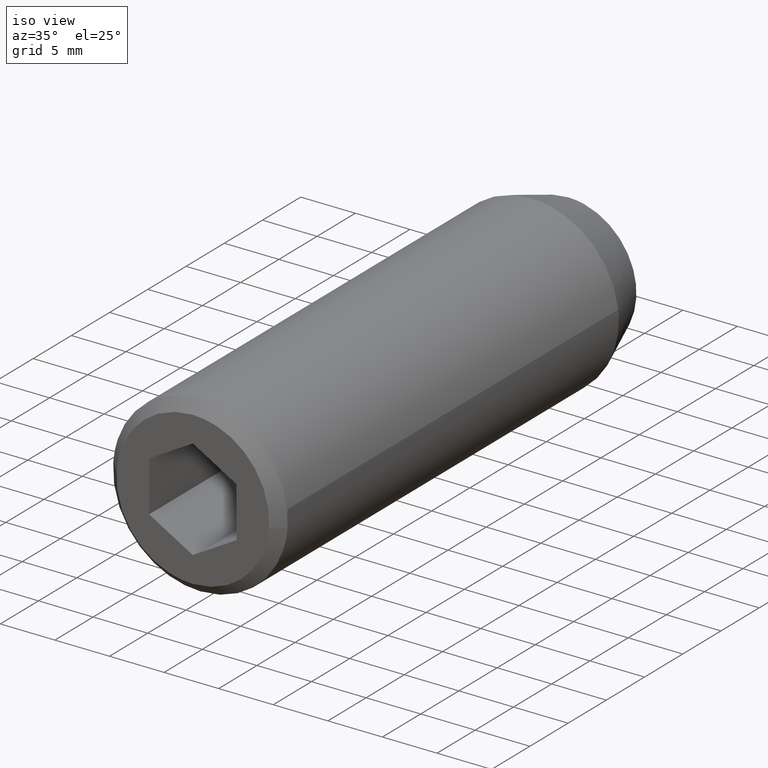
[diagram: clean part render]
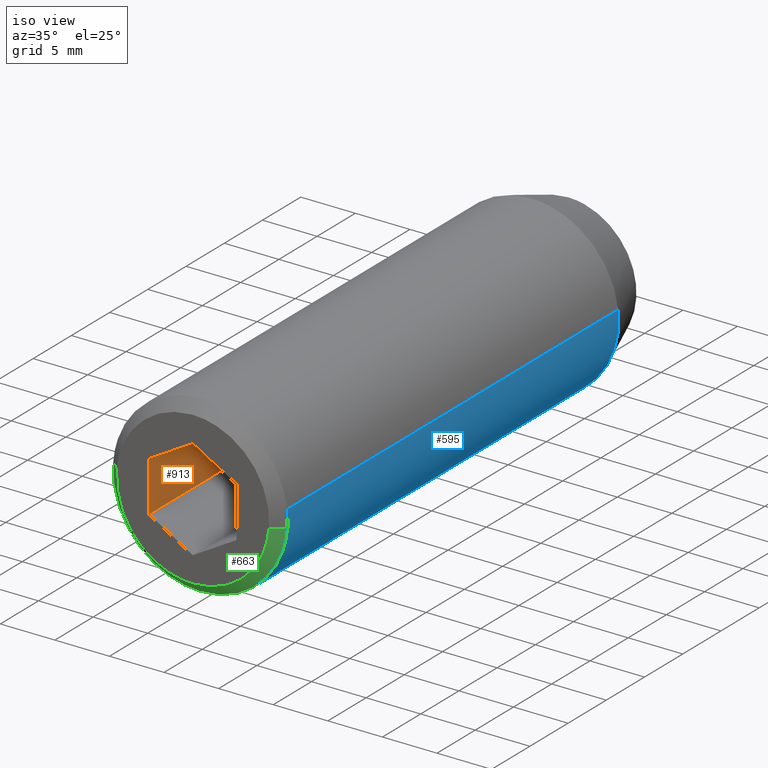
[diagram: same view with three faces highlighted in distinct colors, each labeled with its STEP entity id]
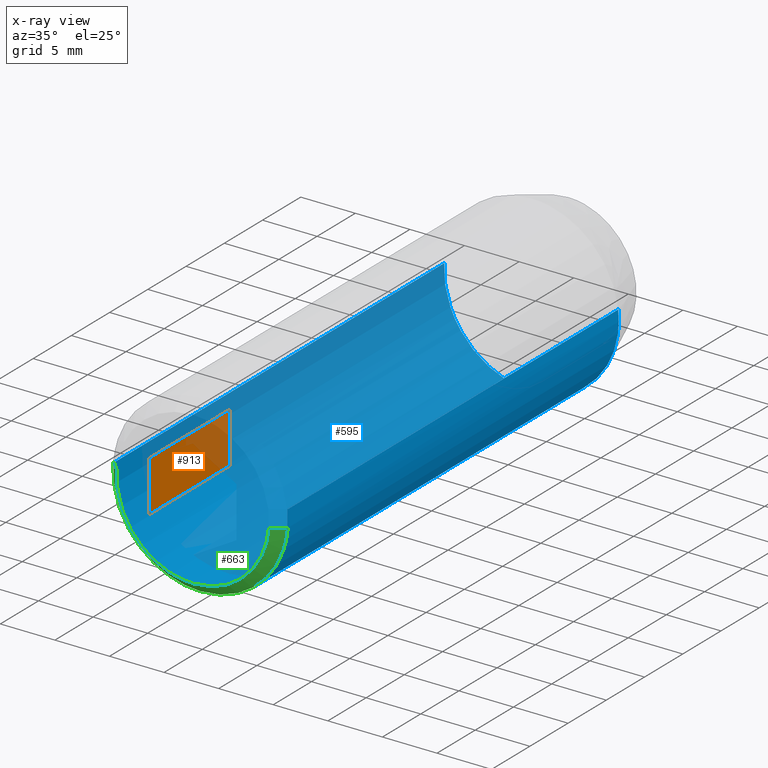
[diagram: x-ray of the same camera — body ghosted, the three highlighted faces saturated]
A machine part, iso view with three faces highlighted in distinct colors.
The next image is the same camera in x-ray (body ghosted, the three faces saturated) — at least one of them is partly hidden behind the body in this view.
Their STEP definitions:

[orange] entity #913 — the highlighted face is a freeform B-spline surface patch.
#737=CARTESIAN_POINT('',(-4.0,-38.600000000000001,2.309401000000000));
#738=VERTEX_POINT('',#737);
#739=CARTESIAN_POINT('',(-4.0,-38.600000000000001,-2.309401000000000));
#740=VERTEX_POINT('',#739);
#741=CARTESIAN_POINT('',(-4.0,-38.600000000000001,2.309401000000000));
#742=CARTESIAN_POINT('',(-4.0,-38.600000000000001,-2.309401000000000));
#743=QUASI_UNIFORM_CURVE('',1,(#741,#742),.UNSPECIFIED.,.F.,.U.);
#744=EDGE_CURVE('',#738,#740,#743,.T.);
#789=CARTESIAN_POINT('',(-4.0,-49.099999999999987,2.309401000000000));
#790=VERTEX_POINT('',#789);
#796=CARTESIAN_POINT('',(-4.0,-38.600000000000001,2.309401000000000));
#797=CARTESIAN_POINT('',(-4.0,-49.099999999999987,2.309401000000000));
#798=QUASI_UNIFORM_CURVE('',1,(#796,#797),.UNSPECIFIED.,.F.,.U.);
#799=EDGE_CURVE('',#738,#790,#798,.T.);
#881=CARTESIAN_POINT('',(-4.0,-49.099999999999987,-2.309401000000000));
#882=VERTEX_POINT('',#881);
#890=CARTESIAN_POINT('',(-4.0,-38.600000000000001,-2.309401000000000));
#891=CARTESIAN_POINT('',(-4.0,-49.099999999999987,-2.309401000000000));
#892=QUASI_UNIFORM_CURVE('',1,(#890,#891),.UNSPECIFIED.,.F.,.U.);
#893=EDGE_CURVE('',#740,#882,#892,.T.);
#898=CARTESIAN_POINT('',(-4.0,-49.624473477611922,-2.540110194305874));
#899=CARTESIAN_POINT('',(-4.0,-49.624473477611922,2.540110276896490));
#900=CARTESIAN_POINT('',(-4.0,-38.075523236682052,-2.540110194305874));
#901=CARTESIAN_POINT('',(-4.0,-38.075523236682052,2.540110276896490));
#902=B_SPLINE_SURFACE_WITH_KNOTS('',1,1,((#898,#900),(#899,#901)),.UNSPECIFIED.,.F.,.F.,.U.,(2,2),(2,2),(0.0,5.080220471202364),(0.0,11.548950240929861),.UNSPECIFIED.);
#903=CARTESIAN_POINT('',(-4.0,-49.099999999999987,2.309401000000000));
#904=CARTESIAN_POINT('',(-4.0,-49.099999999999987,-2.309401000000000));
#905=QUASI_UNIFORM_CURVE('',1,(#903,#904),.UNSPECIFIED.,.F.,.U.);
#906=EDGE_CURVE('',#790,#882,#905,.T.);
#907=ORIENTED_EDGE('',*,*,#906,.T.);
#908=ORIENTED_EDGE('',*,*,#893,.F.);
#909=ORIENTED_EDGE('',*,*,#744,.F.);
#910=ORIENTED_EDGE('',*,*,#799,.T.);
#911=EDGE_LOOP('',(#907,#908,#909,#910));
#912=FACE_OUTER_BOUND('',#911,.T.);
#913=ADVANCED_FACE('',(#912),#902,.F.);

[blue] entity #595 — the highlighted face is a freeform B-spline surface patch.
#309=CARTESIAN_POINT('',(-7.985078754315566,-4.808085991073178,0.488382263480437));
#310=VERTEX_POINT('',#309);
#331=CARTESIAN_POINT('',(7.947754924152036,-4.808086000000000,0.912793331193569));
#332=VERTEX_POINT('',#331);
#346=CARTESIAN_POINT('',(0.0,-4.808085999999999,-8.000000000000002));
#347=VERTEX_POINT('',#346);
#348=CARTESIAN_POINT('',(0.0,-4.808085999999999,-8.000000000000002));
#349=CARTESIAN_POINT('',(8.0,-4.808086000000000,-8.000000000000002));
#350=CARTESIAN_POINT('',(8.0,-4.808085999999999,-1.291960E-015));
#351=CARTESIAN_POINT('',(8.0,-4.808085999999999,0.457891827676239));
#352=CARTESIAN_POINT('',(7.947754924152037,-4.808086000000000,0.912793331193569));
#360=(BOUNDED_CURVE()B_SPLINE_CURVE(2,(#348,#349,#350,#351,#352),.UNSPECIFIED.,.F.,.U.)B_SPLINE_CURVE_WITH_KNOTS((3,2,3),(0.0,0.250000000000000,0.269767500636303),.UNSPECIFIED.)CURVE()GEOMETRIC_REPRESENTATION_ITEM()RATIONAL_B_SPLINE_CURVE((1.0,0.707106781186548,1.0,0.976840932442945,0.957344239947252))REPRESENTATION_ITEM(''));
#361=EDGE_CURVE('',#347,#332,#360,.T.);
#363=CARTESIAN_POINT('',(-6.487788583762318,-4.808086000000658,-4.680662270705629));
#364=VERTEX_POINT('',#363);
#365=CARTESIAN_POINT('',(-6.487788583762318,-4.808086000000659,-4.680662270705628));
#366=CARTESIAN_POINT('',(-4.093028231652281,-4.808085999999999,-8.000000000000002));
#367=CARTESIAN_POINT('',(0.0,-4.808085999999999,-8.000000000000002));
#375=(BOUNDED_CURVE()B_SPLINE_CURVE(2,(#365,#366,#367),.UNSPECIFIED.,.F.,.U.)B_SPLINE_CURVE_WITH_KNOTS((3,3),(0.850743050382243,1.0),.UNSPECIFIED.)CURVE()GEOMETRIC_REPRESENTATION_ITEM()RATIONAL_B_SPLINE_CURVE((0.859068214727234,0.825134606384711,1.0))REPRESENTATION_ITEM(''));
#376=EDGE_CURVE('',#364,#347,#375,.T.);
#416=CARTESIAN_POINT('',(-7.985078754315566,-4.808085991073178,0.488382263480437));
#417=CARTESIAN_POINT('',(-8.0,-4.808085999999999,0.244419071603541));
#418=CARTESIAN_POINT('',(-8.0,-4.808085999999999,-1.291960E-015));
#419=CARTESIAN_POINT('',(-8.0,-4.808085999999999,-2.584611029433695));
#420=CARTESIAN_POINT('',(-6.487788583762318,-4.808086000000658,-4.680662270705629));
#428=(BOUNDED_CURVE()B_SPLINE_CURVE(2,(#416,#417,#418,#419,#420),.UNSPECIFIED.,.F.,.U.)B_SPLINE_CURVE_WITH_KNOTS((3,2,3),(0.739333093030511,0.750000000000000,0.850743050382242),.UNSPECIFIED.)CURVE()GEOMETRIC_REPRESENTATION_ITEM()RATIONAL_B_SPLINE_CURVE((0.976072321978106,0.987502941131691,1.0,0.881972174801837,0.859068214727234))REPRESENTATION_ITEM(''));
#429=EDGE_CURVE('',#310,#364,#428,.T.);
#457=CARTESIAN_POINT('',(7.947753547482387,-48.099999999999987,0.912805317951816));
#458=VERTEX_POINT('',#457);
#474=CARTESIAN_POINT('',(7.947754924152036,-4.808086000000000,0.912793331193569));
#475=CARTESIAN_POINT('',(7.947753547482387,-48.099999999999987,0.912805317951816));
#476=QUASI_UNIFORM_CURVE('',1,(#474,#475),.UNSPECIFIED.,.F.,.U.);
#477=EDGE_CURVE('',#332,#458,#476,.T.);
#481=CARTESIAN_POINT('',(-7.985078437128507,-48.099999999999987,0.488387502813780));
#482=VERTEX_POINT('',#481);
#483=CARTESIAN_POINT('',(-7.985078754315566,-4.808085991073178,0.488382263480437));
#484=CARTESIAN_POINT('',(-7.985078437128507,-48.099999999999987,0.488387502813780));
#485=QUASI_UNIFORM_CURVE('',1,(#483,#484),.UNSPECIFIED.,.F.,.U.);
#486=EDGE_CURVE('',#310,#482,#485,.T.);
#519=CARTESIAN_POINT('',(-7.985078387374934,-3.725788149999997,0.488388316278855));
#520=CARTESIAN_POINT('',(-8.473466703653790,-3.725788149999997,-7.496690071096079));
#521=CARTESIAN_POINT('',(-0.488388316278856,-3.725788149999997,-7.985078387374935));
#522=CARTESIAN_POINT('',(7.496690071096078,-3.725788149999997,-8.473466703653791));
#523=CARTESIAN_POINT('',(7.985078387374934,-3.725788149999997,-0.488388316278857));
#524=CARTESIAN_POINT('',(8.028029107158222,-3.725788149999997,0.213849744772372));
#525=CARTESIAN_POINT('',(7.947753547485708,-3.725788149999998,0.912805317922882));
#526=CARTESIAN_POINT('',(-7.985078387374934,-49.209355296250010,0.488388316278855));
#527=CARTESIAN_POINT('',(-8.473466703653790,-49.209355296250010,-7.496690071096079));
#528=CARTESIAN_POINT('',(-0.488388316278856,-49.209355296250010,-7.985078387374935));
#529=CARTESIAN_POINT('',(7.496690071096078,-49.209355296250010,-8.473466703653791));
#530=CARTESIAN_POINT('',(7.985078387374934,-49.209355296250010,-0.488388316278857));
#531=CARTESIAN_POINT('',(8.028029107158222,-49.209355296249996,0.213849744772372));
#532=CARTESIAN_POINT('',(7.947753547485708,-49.209355296250003,0.912805317922882));
#540=(BOUNDED_SURFACE()B_SPLINE_SURFACE(2,1,((#519,#526),(#520,#527),(#521,#528),(#522,#529),(#523,#530),(#524,#531),(#525,#532)),.UNSPECIFIED.,.F.,.F.,.U.)B_SPLINE_SURFACE_WITH_KNOTS((3,2,2,3),(2,2),(0.0,13.254833995939039,26.509667991878079,28.100248071390759),(0.0,45.483567146250017),.UNSPECIFIED.)GEOMETRIC_REPRESENTATION_ITEM()RATIONAL_B_SPLINE_SURFACE(((1.0,1.0),(0.707106781186548,0.707106781186548),(1.0,1.0),(0.707106781186548,0.707106781186548),(1.0,1.0),(0.964852813742386,0.964852813742386),(0.938140952186599,0.938140952186599)))REPRESENTATION_ITEM('')SURFACE());
#541=CARTESIAN_POINT('',(7.975338669870242,-48.099999999986913,-0.627672765923208));
#542=VERTEX_POINT('',#541);
#543=CARTESIAN_POINT('',(7.975338669870242,-48.099999999986913,-0.627672765923208));
#544=CARTESIAN_POINT('',(8.0,-48.099999999999994,-0.314320856161238));
#545=CARTESIAN_POINT('',(8.0,-48.099999999999987,-1.291960E-015));
#546=CARTESIAN_POINT('',(8.0,-48.100000000000009,0.457897880231555));
#547=CARTESIAN_POINT('',(7.947753547482387,-48.099999999999994,0.912805317951816));
#555=(BOUNDED_CURVE()B_SPLINE_CURVE(2,(#543,#544,#545,#546,#547),.UNSPECIFIED.,.F.,.U.)B_SPLINE_CURVE_WITH_KNOTS((3,2,3),(0.236331300628493,0.250000000000000,0.269767755877841),.UNSPECIFIED.)CURVE()GEOMETRIC_REPRESENTATION_ITEM()RATIONAL_B_SPLINE_CURVE((0.969723356162896,0.983986122576344,1.0,0.976840633408882,0.957343736458233))REPRESENTATION_ITEM(''));
#556=EDGE_CURVE('',#542,#458,#555,.T.);
#557=ORIENTED_EDGE('',*,*,#556,.F.);
#558=CARTESIAN_POINT('',(0.0,-48.099999999999987,-8.000000000000002));
#559=VERTEX_POINT('',#558);
#560=CARTESIAN_POINT('',(0.0,-48.099999999999987,-8.000000000000002));
#561=CARTESIAN_POINT('',(7.395123933080713,-48.099999999999994,-8.000000000000002));
#562=CARTESIAN_POINT('',(7.975338669870242,-48.099999999986913,-0.627672765923208));
#570=(BOUNDED_CURVE()B_SPLINE_CURVE(2,(#560,#561,#562),.UNSPECIFIED.,.F.,.U.)B_SPLINE_CURVE_WITH_KNOTS((3,3),(0.0,0.236331300628493),.UNSPECIFIED.)CURVE()GEOMETRIC_REPRESENTATION_ITEM()RATIONAL_B_SPLINE_CURVE((1.0,0.723120658610204,0.969723356162896))REPRESENTATION_ITEM(''));
#571=EDGE_CURVE('',#559,#542,#570,.T.);
#572=ORIENTED_EDGE('',*,*,#571,.F.);
#573=CARTESIAN_POINT('',(-7.985078437128507,-48.099999999999994,0.488387502813780));
#574=CARTESIAN_POINT('',(-8.0,-48.099999999999994,0.244421290642767));
#575=CARTESIAN_POINT('',(-8.0,-48.099999999999987,-1.291960E-015));
#576=CARTESIAN_POINT('',(-8.0,-48.100000000000009,-8.000000000000002));
#577=CARTESIAN_POINT('',(0.0,-48.099999999999987,-8.000000000000002));
#585=(BOUNDED_CURVE()B_SPLINE_CURVE(2,(#573,#574,#575,#576,#577),.UNSPECIFIED.,.F.,.U.)B_SPLINE_CURVE_WITH_KNOTS((3,2,3),(0.739332997397739,0.750000000000000,1.0),.UNSPECIFIED.)CURVE()GEOMETRIC_REPRESENTATION_ITEM()RATIONAL_B_SPLINE_CURVE((0.976072117018722,0.987502829090929,1.0,0.707106781186548,1.0))REPRESENTATION_ITEM(''));
#586=EDGE_CURVE('',#482,#559,#585,.T.);
#587=ORIENTED_EDGE('',*,*,#586,.F.);
#588=ORIENTED_EDGE('',*,*,#486,.F.);
#589=ORIENTED_EDGE('',*,*,#429,.T.);
#590=ORIENTED_EDGE('',*,*,#376,.T.);
#591=ORIENTED_EDGE('',*,*,#361,.T.);
#592=ORIENTED_EDGE('',*,*,#477,.T.);
#593=EDGE_LOOP('',(#557,#572,#587,#588,#589,#590,#591,#592));
#594=FACE_OUTER_BOUND('',#593,.T.);
#595=ADVANCED_FACE('',(#594),#540,.T.);

[green] entity #663 — the highlighted face is a freeform B-spline surface patch.
#481=CARTESIAN_POINT('',(-7.985078437128507,-48.099999999999987,0.488387502813780));
#482=VERTEX_POINT('',#481);
#488=CARTESIAN_POINT('',(-7.975338669870242,-48.099999999986913,0.627672765923205));
#489=VERTEX_POINT('',#488);
#490=CARTESIAN_POINT('',(-7.975338669870242,-48.099999999986913,0.627672765923205));
#491=CARTESIAN_POINT('',(-7.980816351049998,-48.100000000000001,0.558072227229160));
#492=CARTESIAN_POINT('',(-7.985078437128508,-48.099999999999994,0.488387502813780));
#500=(BOUNDED_CURVE()B_SPLINE_CURVE(2,(#490,#491,#492),.UNSPECIFIED.,.F.,.U.)B_SPLINE_CURVE_WITH_KNOTS((3,3),(0.736331300628493,0.739332997397738),.UNSPECIFIED.)CURVE()GEOMETRIC_REPRESENTATION_ITEM()RATIONAL_B_SPLINE_CURVE((0.969723356162896,0.972855512244475,0.976072117018720))REPRESENTATION_ITEM(''));
#501=EDGE_CURVE('',#489,#482,#500,.T.);
#541=CARTESIAN_POINT('',(7.975338669870242,-48.099999999986913,-0.627672765923208));
#542=VERTEX_POINT('',#541);
#558=CARTESIAN_POINT('',(0.0,-48.099999999999987,-8.000000000000002));
#559=VERTEX_POINT('',#558);
#560=CARTESIAN_POINT('',(0.0,-48.099999999999987,-8.000000000000002));
#561=CARTESIAN_POINT('',(7.395123933080713,-48.099999999999994,-8.000000000000002));
#562=CARTESIAN_POINT('',(7.975338669870242,-48.099999999986913,-0.627672765923208));
#570=(BOUNDED_CURVE()B_SPLINE_CURVE(2,(#560,#561,#562),.UNSPECIFIED.,.F.,.U.)B_SPLINE_CURVE_WITH_KNOTS((3,3),(0.0,0.236331300628493),.UNSPECIFIED.)CURVE()GEOMETRIC_REPRESENTATION_ITEM()RATIONAL_B_SPLINE_CURVE((1.0,0.723120658610204,0.969723356162896))REPRESENTATION_ITEM(''));
#571=EDGE_CURVE('',#559,#542,#570,.T.);
#573=CARTESIAN_POINT('',(-7.985078437128507,-48.099999999999994,0.488387502813780));
#574=CARTESIAN_POINT('',(-8.0,-48.099999999999994,0.244421290642767));
#575=CARTESIAN_POINT('',(-8.0,-48.099999999999987,-1.291960E-015));
#576=CARTESIAN_POINT('',(-8.0,-48.100000000000009,-8.000000000000002));
#577=CARTESIAN_POINT('',(0.0,-48.099999999999987,-8.000000000000002));
#585=(BOUNDED_CURVE()B_SPLINE_CURVE(2,(#573,#574,#575,#576,#577),.UNSPECIFIED.,.F.,.U.)B_SPLINE_CURVE_WITH_KNOTS((3,2,3),(0.739332997397739,0.750000000000000,1.0),.UNSPECIFIED.)CURVE()GEOMETRIC_REPRESENTATION_ITEM()RATIONAL_B_SPLINE_CURVE((0.976072117018722,0.987502829090929,1.0,0.707106781186548,1.0))REPRESENTATION_ITEM(''));
#586=EDGE_CURVE('',#482,#559,#585,.T.);
#596=CARTESIAN_POINT('',(6.953498402788557,-49.125000000000000,-0.547252192701723));
#597=CARTESIAN_POINT('',(6.406246210086835,-49.125000000000000,-7.500750595490280));
#598=CARTESIAN_POINT('',(-0.547252192701722,-49.125000000000000,-6.953498402788558));
#599=CARTESIAN_POINT('',(-7.500750595490278,-49.125000000000000,-6.406246210086835));
#600=CARTESIAN_POINT('',(-6.953498402788557,-49.125000000000000,0.547252192701721));
#601=CARTESIAN_POINT('',(8.000884676541938,-48.074374999999989,-0.629683280150792));
#602=CARTESIAN_POINT('',(7.371201396391148,-48.074374999999989,-8.630567956692730));
#603=CARTESIAN_POINT('',(-0.629683280150791,-48.074374999999989,-8.000884676541940));
#604=CARTESIAN_POINT('',(-8.630567956692730,-48.074374999999989,-7.371201396391149));
#605=CARTESIAN_POINT('',(-8.000884676541938,-48.074374999999989,0.629683280150790));
#613=(BOUNDED_SURFACE()B_SPLINE_SURFACE(2,1,((#596,#601),(#597,#602),(#598,#603),(#599,#604),(#600,#605)),.UNSPECIFIED.,.F.,.F.,.U.)B_SPLINE_SURFACE_WITH_KNOTS((3,2,3),(2,2),(0.0,13.297290886082290,26.594581772164592),(0.0,1.0),.UNSPECIFIED.)GEOMETRIC_REPRESENTATION_ITEM()RATIONAL_B_SPLINE_SURFACE(((1.0,1.0),(0.707106781186548,0.707106781186548),(1.0,1.0),(0.707106781186548,0.707106781186548),(1.0,1.0)))REPRESENTATION_ITEM('')SURFACE());
#614=ORIENTED_EDGE('',*,*,#571,.T.);
#615=CARTESIAN_POINT('',(6.978421336132511,-49.099999999998431,-0.549213670107005));
#616=VERTEX_POINT('',#615);
#617=CARTESIAN_POINT('',(6.978421336132511,-49.099999999998431,-0.549213670107005));
#618=CARTESIAN_POINT('',(7.975338669870242,-48.099999999986913,-0.627672765923208));
#619=QUASI_UNIFORM_CURVE('',1,(#617,#618),.UNSPECIFIED.,.F.,.U.);
#620=EDGE_CURVE('',#616,#542,#619,.T.);
#621=ORIENTED_EDGE('',*,*,#620,.F.);
#622=CARTESIAN_POINT('',(0.0,-49.099999999999987,-7.000000000000001));
#623=VERTEX_POINT('',#622);
#624=CARTESIAN_POINT('',(0.0,-49.099999999999987,-7.000000000000001));
#625=CARTESIAN_POINT('',(6.470733441585187,-49.099999999999987,-7.000000000000004));
#626=CARTESIAN_POINT('',(6.978421336132511,-49.099999999998431,-0.549213670107005));
#634=(BOUNDED_CURVE()B_SPLINE_CURVE(2,(#624,#625,#626),.UNSPECIFIED.,.F.,.U.)B_SPLINE_CURVE_WITH_KNOTS((3,3),(0.0,0.236331300632179),.UNSPECIFIED.)CURVE()GEOMETRIC_REPRESENTATION_ITEM()RATIONAL_B_SPLINE_CURVE((1.0,0.723120658605885,0.969723356170588))REPRESENTATION_ITEM(''));
#635=EDGE_CURVE('',#623,#616,#634,.T.);
#636=ORIENTED_EDGE('',*,*,#635,.F.);
#637=CARTESIAN_POINT('',(-6.978421336132512,-49.099999999998431,0.549213670107002));
#638=VERTEX_POINT('',#637);
#639=CARTESIAN_POINT('',(-6.978421336132512,-49.099999999998431,0.549213670107002));
#640=CARTESIAN_POINT('',(-7.000000000000001,-49.099999999999994,0.275030749065706));
#641=CARTESIAN_POINT('',(-7.0,-49.099999999999987,-1.291960E-015));
#642=CARTESIAN_POINT('',(-6.999999999999999,-49.100000000000001,-7.000000000000002));
#643=CARTESIAN_POINT('',(0.0,-49.099999999999987,-7.000000000000001));
#651=(BOUNDED_CURVE()B_SPLINE_CURVE(2,(#639,#640,#641,#642,#643),.UNSPECIFIED.,.F.,.U.)B_SPLINE_CURVE_WITH_KNOTS((3,2,3),(0.736331300632179,0.750000000000000,1.0),.UNSPECIFIED.)CURVE()GEOMETRIC_REPRESENTATION_ITEM()RATIONAL_B_SPLINE_CURVE((0.969723356170589,0.983986122580662,1.0,0.707106781186547,1.0))REPRESENTATION_ITEM(''));
#652=EDGE_CURVE('',#638,#623,#651,.T.);
#653=ORIENTED_EDGE('',*,*,#652,.F.);
#654=CARTESIAN_POINT('',(-6.978421336132512,-49.099999999998431,0.549213670107002));
#655=CARTESIAN_POINT('',(-7.975338669870242,-48.099999999986913,0.627672765923205));
#656=QUASI_UNIFORM_CURVE('',1,(#654,#655),.UNSPECIFIED.,.F.,.U.);
#657=EDGE_CURVE('',#638,#489,#656,.T.);
#658=ORIENTED_EDGE('',*,*,#657,.T.);
#659=ORIENTED_EDGE('',*,*,#501,.T.);
#660=ORIENTED_EDGE('',*,*,#586,.T.);
#661=EDGE_LOOP('',(#614,#621,#636,#653,#658,#659,#660));
#662=FACE_OUTER_BOUND('',#661,.T.);
#663=ADVANCED_FACE('',(#662),#613,.T.);